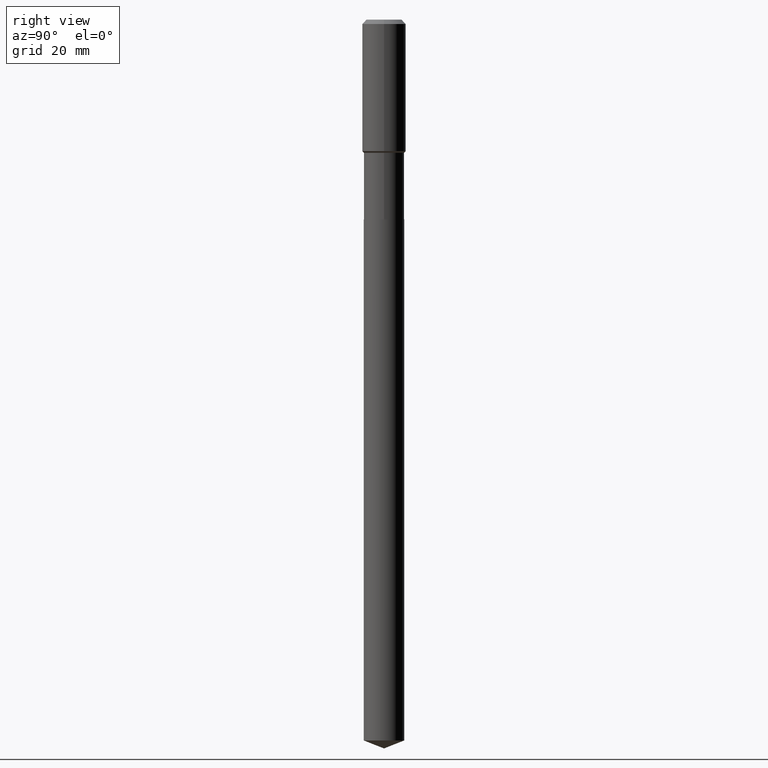
[diagram: clean part render]
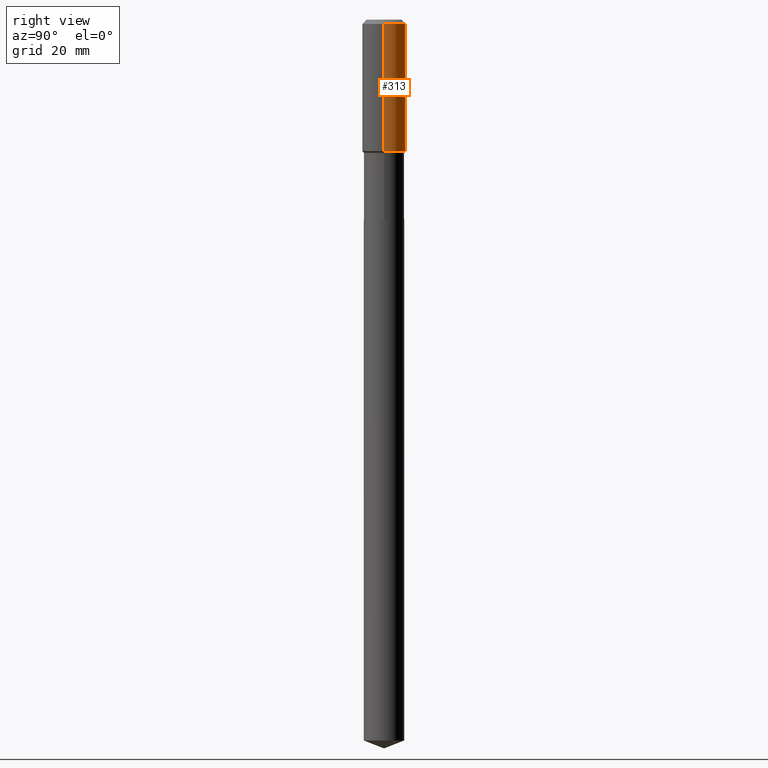
[diagram: same view with one face highlighted and labeled with its STEP entity id]
A machine part, right view. The second image highlights one B-rep face of the part: STEP entity #313.
In plain terms, the highlighted cylindrical surface (edge-blend (fillet) strip) has radius 7.9997 mm, axis along (-0, 0, 1).
Its self-contained STEP definition (entity closure, byte-faithful):
#2 = DIRECTION ( 'NONE',  ( -2.445468806185136597E-29, 3.491481338843145583E-15, 1.000000000000000000 ) ) ;
#11 = CARTESIAN_POINT ( 'NONE',  ( 4.639054325333201492E-29, -6.623340099785443286E-15, -1.896999999999998909 ) ) ;
#40 = CARTESIAN_POINT ( 'NONE',  ( -0.3149500000000000077, -1.183779908383150389E-15, -0.06299000000000036514 ) ) ;
#42 = CARTESIAN_POINT ( 'NONE',  ( 1.540400801016026329E-30, -2.199284095337310135E-16, -0.06299000000000036514 ) ) ;
#51 = CARTESIAN_POINT ( 'NONE',  ( -0.3149500000000001743, 2.237854346276436774E-15, -1.549218606675783237E-29 ) ) ;
#65 = ORIENTED_EDGE ( 'NONE', *, *, #253, .F. ) ;
#88 = LINE ( 'NONE', #51, #189 ) ;
#101 = CYLINDRICAL_SURFACE ( 'NONE', #294, 0.3149500000000001743 ) ;
#111 = EDGE_CURVE ( 'NONE', #191, #482, #117, .T. ) ;
#117 = LINE ( 'NONE', #266, #168 ) ;
#165 = CARTESIAN_POINT ( 'NONE',  ( 0.3149500000000002298, -8.822624195122734735E-15, -1.896999999999998909 ) ) ;
#166 = DIRECTION ( 'NONE',  ( 1.000000000000000000, -6.982962677686266711E-15, 0.000000000000000000 ) ) ;
#168 = VECTOR ( 'NONE', #416, 39.37007874015748143 ) ;
#172 = DIRECTION ( 'NONE',  ( -2.445468806185136877E-29, 3.491481338843145188E-15, 1.000000000000000000 ) ) ;
#187 = EDGE_CURVE ( 'NONE', #418, #428, #88, .T. ) ;
#189 = VECTOR ( 'NONE', #172, 39.37007874015748143 ) ;
#191 = VERTEX_POINT ( 'NONE', #165 ) ;
#199 = CARTESIAN_POINT ( 'NONE',  ( 0.3149500000000000077, -2.419212504871020909E-15, -0.06299000000000036514 ) ) ;
#215 = CARTESIAN_POINT ( 'NONE',  ( 0.000000000000000000, 0.000000000000000000, 0.000000000000000000 ) ) ;
#240 = CIRCLE ( 'NONE', #459, 0.3149500000000000077 ) ;
#253 = EDGE_CURVE ( 'NONE', #482, #428, #240, .T. ) ;
#266 = CARTESIAN_POINT ( 'NONE',  ( 0.3149500000000001743, -2.199284095337290660E-15, 1.535751875536930690E-29 ) ) ;
#267 = ORIENTED_EDGE ( 'NONE', *, *, #481, .T. ) ;
#278 = DIRECTION ( 'NONE',  ( -2.445468806185136597E-29, 3.491481338843145583E-15, 1.000000000000000000 ) ) ;
#294 = AXIS2_PLACEMENT_3D ( 'NONE', #215, #278, #402 ) ;
#309 = DIRECTION ( 'NONE',  ( 1.000000000000000000, -6.982962677686264344E-15, 0.000000000000000000 ) ) ;
#313 = ADVANCED_FACE ( 'NONE', ( #400 ), #101, .T. ) ;
#347 = ORIENTED_EDGE ( 'NONE', *, *, #111, .F. ) ;
#350 = EDGE_LOOP ( 'NONE', ( #267, #368, #65, #347 ) ) ;
#368 = ORIENTED_EDGE ( 'NONE', *, *, #187, .T. ) ;
#400 = FACE_OUTER_BOUND ( 'NONE', #350, .T. ) ;
#402 = DIRECTION ( 'NONE',  ( 1.000000000000000000, -6.982962677686265922E-15, 4.876176775795935232E-29 ) ) ;
#416 = DIRECTION ( 'NONE',  ( -2.445468806185136877E-29, 3.491481338843145188E-15, 1.000000000000000000 ) ) ;
#418 = VERTEX_POINT ( 'NONE', #483 ) ;
#421 = CIRCLE ( 'NONE', #460, 0.3149500000000002298 ) ;
#428 = VERTEX_POINT ( 'NONE', #40 ) ;
#459 = AXIS2_PLACEMENT_3D ( 'NONE', #42, #2, #166 ) ;
#460 = AXIS2_PLACEMENT_3D ( 'NONE', #11, #469, #309 ) ;
#469 = DIRECTION ( 'NONE',  ( -2.445468806185136597E-29, 3.491481338843145583E-15, 1.000000000000000000 ) ) ;
#481 = EDGE_CURVE ( 'NONE', #191, #418, #421, .T. ) ;
#482 = VERTEX_POINT ( 'NONE', #199 ) ;
#483 = CARTESIAN_POINT ( 'NONE',  ( -0.3149500000000002298, -4.385485753509006513E-15, -1.896999999999998909 ) ) ;